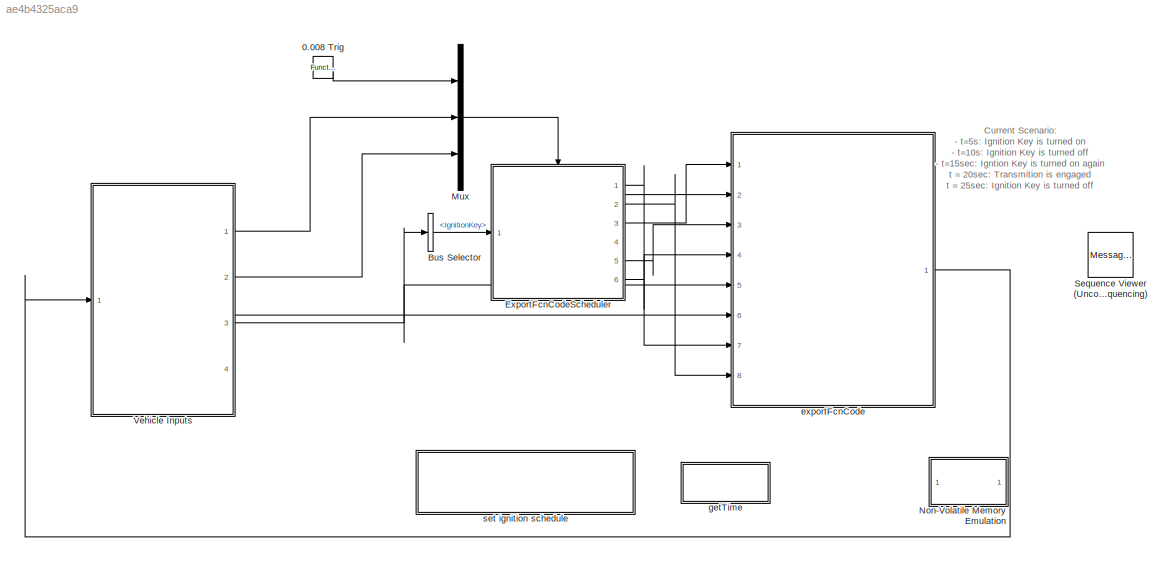
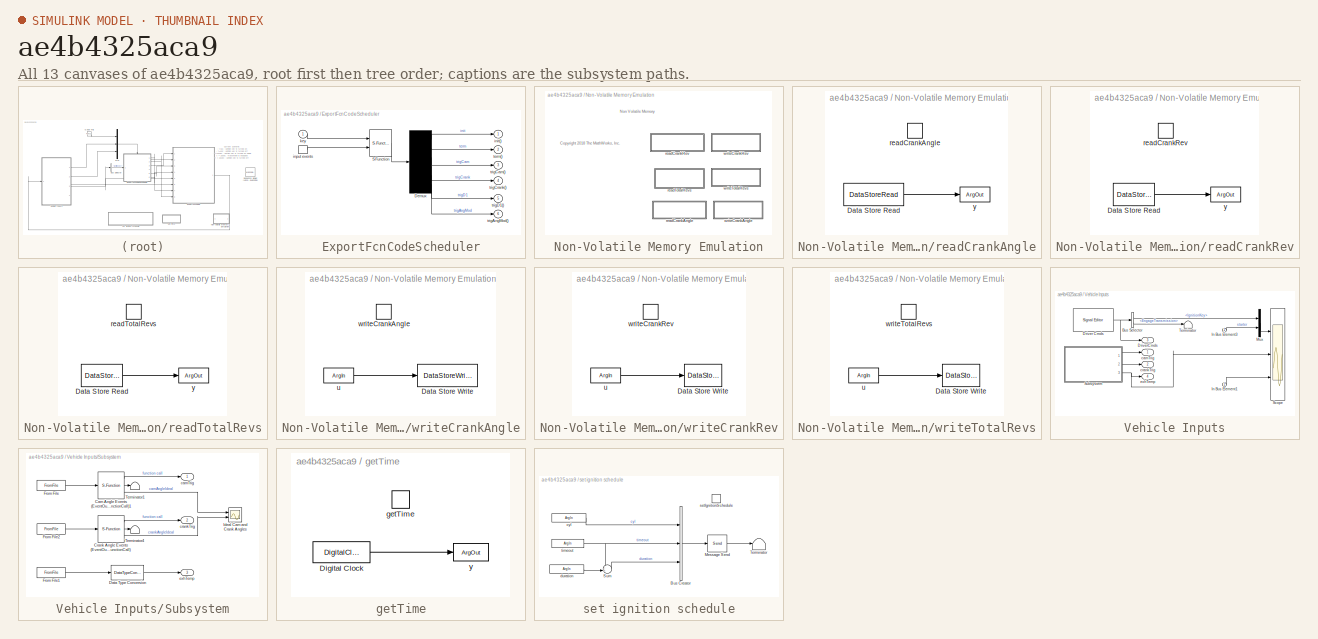
[diagram: thumbnail index - all 13 canvases of the model, root first then tree order]
MODEL slx_ae4b4325aca9
KIND model
CONFIG AbsTol = auto
CONFIG EnableMultiTasking = off
CONFIG FixedStep = auto
CONFIG MaxStep = auto
CONFIG MinStep = auto
CONFIG RelTol = 1e-3
CONFIG SampleTimeConstraint = Unconstrained
CONFIG SolverName = VariableStepAuto
CONFIG StartTime = 0.0
CONFIG StopTime = 30
BLOCK [Reference] 0.008 Trig  REF=simulink/Ports &
Subsystems/Function-Call
Generator
  Ports = [0, 1]
  SourceBlock = simulink/Ports &\nSubsystems/Function-Call\nGenerator
  SourceProductBaseCode = SL
  SourceType = Function-Call Generator
BLOCK [BusSelector] Bus Selector
  OutputSignals = IgnitionKey
  Ports = [1, 1]
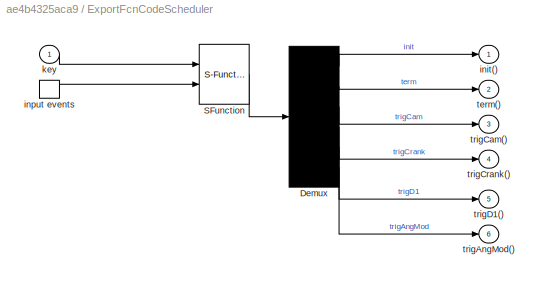
BLOCK [SubSystem] ExportFcnCodeScheduler
  ErrorFcn = Stateflow.Translate.translate
  PermitHierarchicalResolution = ExplicitOnly
  Ports = [1, 6, 0, 1]
  RequestExecContextInheritance = off
  SFBlockType = Chart
  TreatAsAtomicUnit = on
BLOCK [Demux] ExportFcnCodeScheduler/ Demux 
  Outputs = 6
  Ports = [1, 6]
BLOCK [S-Function] ExportFcnCodeScheduler/ SFunction 
  EnableBusSupport = on
  FunctionName = sf_sfun
  PortCounts = [2 1]
  Ports = [2, 1]
  SFcnIsStateOwnerBlock = off
  SFunctionDeploymentMode = off
  Tag = Stateflow S-Function 2
BLOCK [Outport] ExportFcnCodeScheduler/init()
  VectorParamsAs1DForOutWhenUnconnected = off
BLOCK [TriggerPort] ExportFcnCodeScheduler/input events
  Ports = [0, 1]
  ShowOutputPort = on
  StatesWhenEnabling = held
  TriggerType = function-call
  VariantControl = (inherit)
BLOCK [Inport] ExportFcnCodeScheduler/key
BLOCK [Outport] ExportFcnCodeScheduler/term()
  Port = 2
  VectorParamsAs1DForOutWhenUnconnected = off
BLOCK [Outport] ExportFcnCodeScheduler/trigAngMod()
  Port = 6
BLOCK [Outport] ExportFcnCodeScheduler/trigCam()
  Port = 3
  VectorParamsAs1DForOutWhenUnconnected = off
BLOCK [Outport] ExportFcnCodeScheduler/trigCrank()
  Port = 4
  VectorParamsAs1DForOutWhenUnconnected = off
BLOCK [Outport] ExportFcnCodeScheduler/trigD1()
  Port = 5
  VectorParamsAs1DForOutWhenUnconnected = off
BLOCK [Mux] Mux
  DisplayOption = bar
  Inputs = 3
  Ports = [3, 1]
BLOCK [SubSystem] Non-Volatile Memory Emulation
  Ports = []
  RequestExecContextInheritance = off
BLOCK [SubSystem] Non-Volatile Memory Emulation/readCrankAngle
  Ports = [0, 0, 0, 1]
  RequestExecContextInheritance = off
  TreatAsAtomicUnit = on
BLOCK [DataStoreRead] Non-Volatile Memory Emulation/readCrankAngle/Data Store Read
  DataStoreName = crankAngle
  Ports = [0, 1]
BLOCK [TriggerPort] Non-Volatile Memory Emulation/readCrankAngle/readCrankAngle
  FunctionName = readCrankAngle
  IsSimulinkFunction = on
  Ports = []
  StatesWhenEnabling = held
  TriggerType = function-call
  VariantControl = (inherit)
BLOCK [ArgOut] Non-Volatile Memory Emulation/readCrankAngle/y
  ArgumentName = y
  DisableCoverage = on
BLOCK [SubSystem] Non-Volatile Memory Emulation/readCrankRev
  Ports = [0, 0, 0, 1]
  RequestExecContextInheritance = off
  TreatAsAtomicUnit = on
BLOCK [DataStoreRead] Non-Volatile Memory Emulation/readCrankRev/Data Store Read
  DataStoreName = rev
  Ports = [0, 1]
BLOCK [TriggerPort] Non-Volatile Memory Emulation/readCrankRev/readCrankRev
  FunctionName = readCrankRev
  IsSimulinkFunction = on
  Ports = []
  StatesWhenEnabling = held
  TriggerType = function-call
  VariantControl = (inherit)
BLOCK [ArgOut] Non-Volatile Memory Emulation/readCrankRev/y
  ArgumentName = y
  DisableCoverage = on
  OutDataTypeStr = boolean
BLOCK [SubSystem] Non-Volatile Memory Emulation/readTotalRevs
  Ports = [0, 0, 0, 1]
  RequestExecContextInheritance = off
  TreatAsAtomicUnit = on
BLOCK [DataStoreRead] Non-Volatile Memory Emulation/readTotalRevs/Data Store Read
  DataStoreName = totalRevs
  Ports = [0, 1]
BLOCK [TriggerPort] Non-Volatile Memory Emulation/readTotalRevs/readTotalRevs
  FunctionName = readTotalRevs
  IsSimulinkFunction = on
  Ports = []
  StatesWhenEnabling = held
  TriggerType = function-call
  VariantControl = (inherit)
BLOCK [ArgOut] Non-Volatile Memory Emulation/readTotalRevs/y
  ArgumentName = y
  DisableCoverage = on
BLOCK [SubSystem] Non-Volatile Memory Emulation/writeCrankAngle
  Ports = [0, 0, 0, 1]
  RequestExecContextInheritance = off
  TreatAsAtomicUnit = on
BLOCK [DataStoreWrite] Non-Volatile Memory Emulation/writeCrankAngle/Data Store Write
  DataStoreName = crankAngle
  Ports = [1]
BLOCK [ArgIn] Non-Volatile Memory Emulation/writeCrankAngle/u
  ArgumentName = u
  DisableCoverage = on
BLOCK [TriggerPort] Non-Volatile Memory Emulation/writeCrankAngle/writeCrankAngle
  FunctionName = writeCrankAngle
  IsSimulinkFunction = on
  Ports = []
  StatesWhenEnabling = held
  TriggerType = function-call
  VariantControl = (inherit)
BLOCK [SubSystem] Non-Volatile Memory Emulation/writeCrankRev
  Ports = [0, 0, 0, 1]
  RequestExecContextInheritance = off
  TreatAsAtomicUnit = on
BLOCK [DataStoreWrite] Non-Volatile Memory Emulation/writeCrankRev/Data Store Write
  DataStoreName = rev
  Ports = [1]
BLOCK [ArgIn] Non-Volatile Memory Emulation/writeCrankRev/u
  ArgumentName = u
  DisableCoverage = on
  OutDataTypeStr = boolean
BLOCK [TriggerPort] Non-Volatile Memory Emulation/writeCrankRev/writeCrankRev
  FunctionName = writeCrankRev
  IsSimulinkFunction = on
  Ports = []
  StatesWhenEnabling = held
  TriggerType = function-call
  VariantControl = (inherit)
BLOCK [SubSystem] Non-Volatile Memory Emulation/writeTotalRevs
  Ports = [0, 0, 0, 1]
  RequestExecContextInheritance = off
  TreatAsAtomicUnit = on
BLOCK [DataStoreWrite] Non-Volatile Memory Emulation/writeTotalRevs/Data Store Write
  DataStoreName = totalRevs
  Ports = [1]
BLOCK [ArgIn] Non-Volatile Memory Emulation/writeTotalRevs/u
  ArgumentName = u
  DisableCoverage = on
BLOCK [TriggerPort] Non-Volatile Memory Emulation/writeTotalRevs/writeTotalRevs
  FunctionName = writeTotalRevs
  IsSimulinkFunction = on
  Ports = []
  StatesWhenEnabling = held
  TriggerType = function-call
  VariantControl = (inherit)
BLOCK [MessageViewer] Sequence Viewer (Uncomment to view events sequencing)
  Commented = on
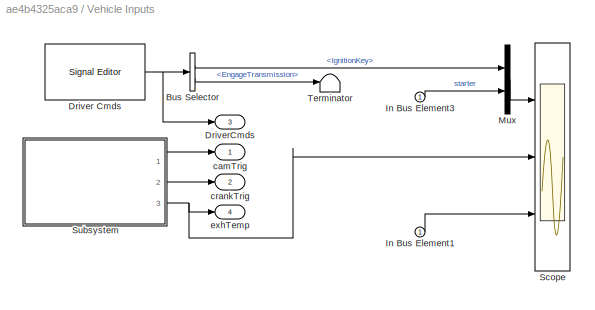
BLOCK [SubSystem] Vehicle Inputs
  Ports = [1, 4]
  RequestExecContextInheritance = off
BLOCK [BusSelector] Vehicle Inputs/Bus Selector
  OutputSignals = IgnitionKey,EngageTransmission
  Ports = [1, 2]
BLOCK [Reference] Vehicle Inputs/Driver Cmds  REF=SignalEditorBlockLib/Signal Editor
  Ports = [0, 1]
  SourceBlock = SignalEditorBlockLib/Signal Editor
  SourceProductBaseCode = SL
  SourceType = SignalEditor
  UserDataPersistent = on
BLOCK [Outport] Vehicle Inputs/DriverCmds
  Port = 3
  VectorParamsAs1DForOutWhenUnconnected = off
BLOCK [Inport] Vehicle Inputs/In Bus Element1
BLOCK [Inport] Vehicle Inputs/In Bus Element3
BLOCK [Mux] Vehicle Inputs/Mux
  DisplayOption = bar
  Inputs = 2
  Ports = [2, 1]
BLOCK [Scope] Vehicle Inputs/Scope
  Floating = off
  NumInputPorts = 3
  Ports = [3]
  ScopeSpecificationString = Simulink.scopes.TimeScopeBlockCfg('CurrentConfiguration', extmgr.ConfigurationSet(extmgr.Configuration('Core','General UI',true),extmgr.Configuration('Core','Source UI',true),extmgr.Configuration('Sources','WiredSimulink',true,'DataLoggingVariableName','ScopeData2'),extmgr.Configuration('Visuals','Time Domain',true,'SerializedDisplays',{struct('MinYLimReal','-0.125','MaxYLimReal','1.125','YLabelRe...<+2754ch>
BLOCK [SubSystem] Vehicle Inputs/Subsystem
  Ports = [0, 3]
  RequestExecContextInheritance = off
BLOCK [S-Function] Vehicle Inputs/Subsystem/Cam Angle Events (EventOutputType: FunctionCall)1
  EnableBusSupport = off
  FunctionName = sfun_angle_events
  LoadFcn = DVG.Registry.registerIcon(...\n'BlockIcon.SFunAngleEvents', ...\nfullfile(matlabroot,'toolbox','simulink','simdemos','simfeatures','slexToothedWheel.svg'))
  Parameters = CrossingAngles, InitialAngle, eventOutputType, clockwiseOnly
  Ports = [1, 3]
  SFcnIsStateOwnerBlock = off
  SFunctionDeploymentMode = off
BLOCK [S-Function] Vehicle Inputs/Subsystem/Crank Angle Events (EventOutputType: FunctionCall)
  EnableBusSupport = off
  FunctionName = sfun_angle_events
  LoadFcn = DVG.Registry.registerIcon(...\n'BlockIcon.SFunAngleEvents', ...\nfullfile(matlabroot,'toolbox','simulink','simdemos','simfeatures','slexToothedWheel.svg'))
  Parameters = CrossingAngles, InitialAngle, eventOutputType, clockwiseOnly
  Ports = [1, 3]
  SFcnIsStateOwnerBlock = off
  SFunctionDeploymentMode = off
BLOCK [DataTypeConversion] Vehicle Inputs/Subsystem/Data Type Conversion
  RndMeth = Floor
  SaturateOnIntegerOverflow = off
BLOCK [FromFile] Vehicle Inputs/Subsystem/From File
  FileName = camTrig.mat
  SampleTime = 0
BLOCK [FromFile] Vehicle Inputs/Subsystem/From File1
  FileName = exhTemp.mat
  SampleTime = 0
BLOCK [FromFile] Vehicle Inputs/Subsystem/From File2
  FileName = crankTrig.mat
  SampleTime = 0
BLOCK [Scope] Vehicle Inputs/Subsystem/Ideal Cam and Crank Angles
  Floating = off
  NumInputPorts = 2
  Ports = [2]
  ScopeSpecificationString = Simulink.scopes.TimeScopeBlockCfg('CurrentConfiguration', extmgr.ConfigurationSet(extmgr.Configuration('Core','General UI',true),extmgr.Configuration('Core','Source UI',true),extmgr.Configuration('Sources','WiredSimulink',true,'DataLoggingVariableName','ScopeData2'),extmgr.Configuration('Visuals','Time Domain',true,'SerializedDisplays',{struct('MinYLimReal','-45.00000','MaxYLimReal','405.00000','Y...<+2120ch>
BLOCK [Terminator] Vehicle Inputs/Subsystem/Terminator1
BLOCK [Terminator] Vehicle Inputs/Subsystem/Terminator4
BLOCK [Outport] Vehicle Inputs/Subsystem/camTrig
  VectorParamsAs1DForOutWhenUnconnected = off
BLOCK [Outport] Vehicle Inputs/Subsystem/crankTrig
  Port = 2
  VectorParamsAs1DForOutWhenUnconnected = off
BLOCK [Outport] Vehicle Inputs/Subsystem/exhTemp
  Port = 3
BLOCK [Terminator] Vehicle Inputs/Terminator
BLOCK [Outport] Vehicle Inputs/camTrig
  VectorParamsAs1DForOutWhenUnconnected = off
BLOCK [Outport] Vehicle Inputs/crankTrig
  Port = 2
  VectorParamsAs1DForOutWhenUnconnected = off
BLOCK [Outport] Vehicle Inputs/exhTemp
  Port = 4
  VectorParamsAs1DForOutWhenUnconnected = off
BLOCK [ModelReference] exportFcnCode
  ModelEventPortInfo = I:initialize,T:terminate
  ModelNameDialog = ignitionController.slx
  ModelReferenceVersion = 1.1
  Ports = [8, 1]
  ScheduleRates = on
  ShowModelInitializePort = on
  ShowModelTerminatePort = on
BLOCK [SubSystem] getTime
  Ports = [0, 0, 0, 1]
  RequestExecContextInheritance = off
  TreatAsAtomicUnit = on
BLOCK [DigitalClock] getTime/Digital Clock
  SampleTime = -1
BLOCK [TriggerPort] getTime/getTime
  FunctionName = getTime
  IsSimulinkFunction = on
  Ports = []
  StatesWhenEnabling = held
  TriggerType = function-call
  VariantControl = (inherit)
BLOCK [ArgOut] getTime/y
  ArgumentName = y
  DisableCoverage = on
BLOCK [SubSystem] set ignition schedule
  Ports = [0, 0, 0, 1]
  RequestExecContextInheritance = off
  TreatAsAtomicUnit = on
BLOCK [BusCreator] set ignition schedule/Bus Creator
  DisplayOption = bar
  InheritFromInputs = on
  Inputs = 3
  NonVirtualBus = on
  OutDataTypeStr = Bus: timerBus
  Ports = [3, 1]
BLOCK [Send] set ignition schedule/Message Send
  InputPortMap = u1
  OutputPortMessageModes = m
  Ports = [1, 1]
BLOCK [Sum] set ignition schedule/Sum
  Inputs = -+|
  Ports = [2, 1]
BLOCK [Terminator] set ignition schedule/Terminator
BLOCK [ArgIn] set ignition schedule/cyl
  ArgumentName = cyl
BLOCK [ArgIn] set ignition schedule/duration
  ArgumentName = duration
  Port = 3
BLOCK [TriggerPort] set ignition schedule/setIgnitionSchedule
  FunctionName = setIgnitionSchedule
  IsSimulinkFunction = on
  Ports = []
  StatesWhenEnabling = held
  TriggerType = function-call
  VariantControl = (inherit)
BLOCK [ArgIn] set ignition schedule/timeout
  ArgumentName = timeout
  DisableCoverage = on
  Port = 2
ANNOTATION (root): Current Scenario: - t=5s: Ignition Key is turned on - t=10s: Ignition Key is turned off - t=15sec: Igntion Key is turned on again t = 20sec: Transmition is engaged t = 25sec: Ignition Key is turned off
ANNOTATION Non-Volatile Memory Emulation: <copyright redacted>
ANNOTATION Non-Volatile Memory Emulation: Non Volatile Memory
LINE 0.008 Trig:1 -> Mux:1
LINE Bus Selector:1 -> ExportFcnCodeScheduler:1
LINE ExportFcnCodeScheduler:1 -> exportFcnCode:7
LINE ExportFcnCodeScheduler:2 -> exportFcnCode:8
LINE ExportFcnCodeScheduler:3 -> exportFcnCode:1
LINE ExportFcnCodeScheduler:4 -> exportFcnCode:2
LINE ExportFcnCodeScheduler:5 -> exportFcnCode:3
LINE ExportFcnCodeScheduler:6 -> exportFcnCode:4
LINE Mux:1 -> ExportFcnCodeScheduler:trigger
LINE Non-Volatile Memory Emulation/readCrankAngle/Data Store Read:1 -> Non-Volatile Memory Emulation/readCrankAngle/y:1
LINE Non-Volatile Memory Emulation/readCrankRev/Data Store Read:1 -> Non-Volatile Memory Emulation/readCrankRev/y:1
LINE Non-Volatile Memory Emulation/readTotalRevs/Data Store Read:1 -> Non-Volatile Memory Emulation/readTotalRevs/y:1
LINE Non-Volatile Memory Emulation/writeCrankAngle/u:1 -> Non-Volatile Memory Emulation/writeCrankAngle/Data Store Write:1
LINE Non-Volatile Memory Emulation/writeCrankRev/u:1 -> Non-Volatile Memory Emulation/writeCrankRev/Data Store Write:1
LINE Non-Volatile Memory Emulation/writeTotalRevs/u:1 -> Non-Volatile Memory Emulation/writeTotalRevs/Data Store Write:1
LINE Vehicle Inputs/Bus Selector:1 -> Vehicle Inputs/Mux:1
LINE Vehicle Inputs/Bus Selector:2 -> Vehicle Inputs/Terminator:1
NET Vehicle Inputs/Driver Cmds:1 -> Vehicle Inputs/Bus Selector:1, Vehicle Inputs/DriverCmds:1
LINE Vehicle Inputs/In Bus Element1:1 -> Vehicle Inputs/Scope:3
LINE Vehicle Inputs/In Bus Element3:1 -> Vehicle Inputs/Mux:2
LINE Vehicle Inputs/Mux:1 -> Vehicle Inputs/Scope:1
LINE Vehicle Inputs/Subsystem/Cam Angle Events (EventOutputType: FunctionCall)1:1 -> Vehicle Inputs/Subsystem/camTrig:1
LINE Vehicle Inputs/Subsystem/Cam Angle Events (EventOutputType: FunctionCall)1:2 -> Vehicle Inputs/Subsystem/Terminator1:1
LINE Vehicle Inputs/Subsystem/Cam Angle Events (EventOutputType: FunctionCall)1:3 -> Vehicle Inputs/Subsystem/Ideal Cam and Crank Angles:1
LINE Vehicle Inputs/Subsystem/Crank Angle Events (EventOutputType: FunctionCall):1 -> Vehicle Inputs/Subsystem/crankTrig:1
LINE Vehicle Inputs/Subsystem/Crank Angle Events (EventOutputType: FunctionCall):2 -> Vehicle Inputs/Subsystem/Terminator4:1
LINE Vehicle Inputs/Subsystem/Crank Angle Events (EventOutputType: FunctionCall):3 -> Vehicle Inputs/Subsystem/Ideal Cam and Crank Angles:2
LINE Vehicle Inputs/Subsystem/Data Type Conversion:1 -> Vehicle Inputs/Subsystem/exhTemp:1
LINE Vehicle Inputs/Subsystem/From File1:1 -> Vehicle Inputs/Subsystem/Data Type Conversion:1
LINE Vehicle Inputs/Subsystem/From File2:1 -> Vehicle Inputs/Subsystem/Crank Angle Events (EventOutputType: FunctionCall):1
LINE Vehicle Inputs/Subsystem/From File:1 -> Vehicle Inputs/Subsystem/Cam Angle Events (EventOutputType: FunctionCall)1:1
LINE Vehicle Inputs/Subsystem:1 -> Vehicle Inputs/camTrig:1
LINE Vehicle Inputs/Subsystem:2 -> Vehicle Inputs/crankTrig:1
NET Vehicle Inputs/Subsystem:3 -> Vehicle Inputs/Scope:2, Vehicle Inputs/exhTemp:1
LINE Vehicle Inputs:1 -> Mux:2
LINE Vehicle Inputs:2 -> Mux:3
NET Vehicle Inputs:3 -> Bus Selector:1, exportFcnCode:5
LINE Vehicle Inputs:4 -> exportFcnCode:6
LINE exportFcnCode:1 -> Vehicle Inputs:1
LINE getTime/Digital Clock:1 -> getTime/y:1
LINE set ignition schedule/Bus Creator:1 -> set ignition schedule/Message Send:1
LINE set ignition schedule/Message Send:1 -> set ignition schedule/Terminator:1
LINE set ignition schedule/Sum:1 -> set ignition schedule/Bus Creator:3
LINE set ignition schedule/cyl:1 -> set ignition schedule/Bus Creator:1
LINE set ignition schedule/duration:1 -> set ignition schedule/Sum:2
NET set ignition schedule/timeout:1 -> set ignition schedule/Bus Creator:2, set ignition schedule/Sum:1
note: NET lines group one-source signal fan-out (src -> all destinations, sorted); 1:1 wires keep LINE
CHART ExportFcnCodeScheduler states=3 transitions=3
  STATE_LABEL 'Off\n'
  STATE_LABEL '<!DOCTYPE HTML PUBLIC "-//W3C//DTD HTML 4.0//EN" "http://www.w3.org/TR/REC-html40/strict.dtd">\n<html><head><meta name="qrichtext" content="1" /><style type="text/css">\np, li { white-space: pre-wrap; }\n</style></head><body style=" font-family:\'Helvetica\'; font-size:12px; font-weight:400; font-style:normal;">\n<p style=" margin-top:0px; margin-bottom:0px; margin-left:0px; margin-right:0px; -qt-block-...<+721ch>'
  STATE_LABEL 'Running\nentry: isECUPowered = true; init();\non every(1, cam): trigCam();\non every(1, crank): trigCrank();\non every(1, crank): trigAngMod();\non every(1, D1): trigD1();\nexit: term();\n'
CHART  states=0 transitions=0
